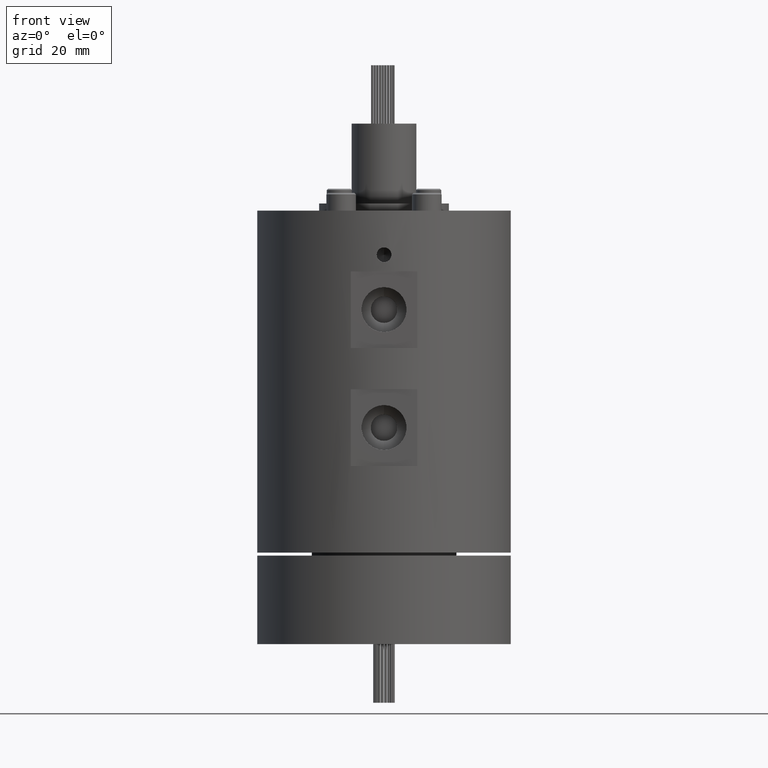
[diagram: clean part render]
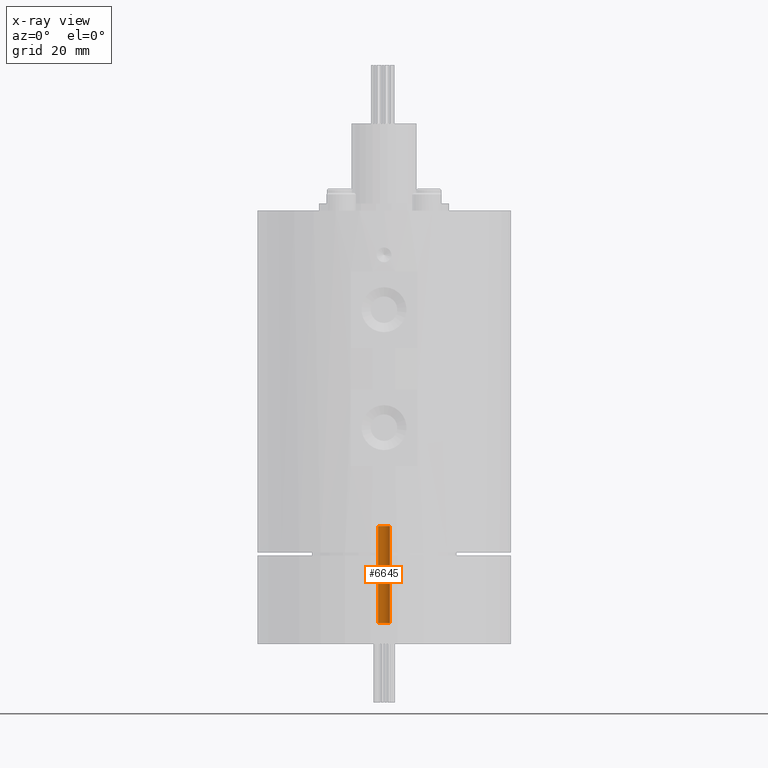
[diagram: x-ray — body ghosted, one internal face saturated and labeled with its STEP entity id]
A machine part, front view, then the same camera in x-ray: the body is ghosted and one INTERNAL B-rep face — a face not visible from any outside direction — is saturated and labeled: STEP entity #6645.
In plain terms, the highlighted cylindrical surface (edge-blend (fillet) strip) has radius 2 mm, axis along (-0, -0, -1).
Its self-contained STEP definition (entity closure, byte-faithful):
#52 = VERTEX_POINT ( 'NONE', #8959 ) ;
#114 = EDGE_CURVE ( 'NONE', #7316, #2812, #8034, .T. ) ;
#470 = CYLINDRICAL_SURFACE ( 'NONE', #6422, 2.000000000000000000 ) ;
#819 = ORIENTED_EDGE ( 'NONE', *, *, #4681, .F. ) ;
#873 = CIRCLE ( 'NONE', #8801, 2.000000000000000000 ) ;
#1481 = VERTEX_POINT ( 'NONE', #3238 ) ;
#1631 = CARTESIAN_POINT ( 'NONE',  ( 2.000000000000000000, 9.750000000000000000, 40.00000000000001400 ) ) ;
#1982 = DIRECTION ( 'NONE',  ( 0.0000000000000000000, 0.0000000000000000000, -1.000000000000000000 ) ) ;
#2320 = CARTESIAN_POINT ( 'NONE',  ( -2.000000000000000000, 9.750000000000000000, 40.00000000000001400 ) ) ;
#2540 = EDGE_CURVE ( 'NONE', #1481, #7316, #8185, .T. ) ;
#2587 = EDGE_CURVE ( 'NONE', #52, #2812, #4512, .T. ) ;
#2623 = DIRECTION ( 'NONE',  ( 0.0000000000000000000, 0.0000000000000000000, -1.000000000000000000 ) ) ;
#2812 = VERTEX_POINT ( 'NONE', #2954 ) ;
#2954 = CARTESIAN_POINT ( 'NONE',  ( 2.000000000000000000, 9.750000000000000000, 7.000000000000000000 ) ) ;
#3238 = CARTESIAN_POINT ( 'NONE',  ( -2.000000000000000000, 9.750000000000000000, 40.00000000000001400 ) ) ;
#3415 = AXIS2_PLACEMENT_3D ( 'NONE', #6115, #1982, #6816 ) ;
#3936 = DIRECTION ( 'NONE',  ( -0.0000000000000000000, -0.0000000000000000000, -1.000000000000000000 ) ) ;
#4209 = FACE_OUTER_BOUND ( 'NONE', #4342, .T. ) ;
#4342 = EDGE_LOOP ( 'NONE', ( #8320, #819, #5227, #8583 ) ) ;
#4512 = LINE ( 'NONE', #1631, #7748 ) ;
#4681 = EDGE_CURVE ( 'NONE', #1481, #52, #873, .T. ) ;
#5227 = ORIENTED_EDGE ( 'NONE', *, *, #2540, .T. ) ;
#5876 = DIRECTION ( 'NONE',  ( -0.0000000000000000000, -0.0000000000000000000, -1.000000000000000000 ) ) ;
#5967 = CARTESIAN_POINT ( 'NONE',  ( 0.0000000000000000000, 9.750000000000000000, 40.00000000000001400 ) ) ;
#6115 = CARTESIAN_POINT ( 'NONE',  ( 0.0000000000000000000, 9.750000000000000000, 7.000000000000000000 ) ) ;
#6422 = AXIS2_PLACEMENT_3D ( 'NONE', #5967, #3936, #8072 ) ;
#6645 = ADVANCED_FACE ( 'NONE', ( #4209 ), #470, .F. ) ;
#6754 = CARTESIAN_POINT ( 'NONE',  ( 0.0000000000000000000, 9.750000000000000000, 40.00000000000001400 ) ) ;
#6816 = DIRECTION ( 'NONE',  ( -1.000000000000000000, 0.0000000000000000000, 0.0000000000000000000 ) ) ;
#7316 = VERTEX_POINT ( 'NONE', #8286 ) ;
#7443 = DIRECTION ( 'NONE',  ( -1.000000000000000000, 0.0000000000000000000, 0.0000000000000000000 ) ) ;
#7748 = VECTOR ( 'NONE', #5876, 1000.000000000000000 ) ;
#7853 = DIRECTION ( 'NONE',  ( -0.0000000000000000000, -0.0000000000000000000, -1.000000000000000000 ) ) ;
#7961 = VECTOR ( 'NONE', #7853, 1000.000000000000000 ) ;
#8034 = CIRCLE ( 'NONE', #3415, 2.000000000000000000 ) ;
#8072 = DIRECTION ( 'NONE',  ( -1.000000000000000000, 0.0000000000000000000, 0.0000000000000000000 ) ) ;
#8185 = LINE ( 'NONE', #2320, #7961 ) ;
#8286 = CARTESIAN_POINT ( 'NONE',  ( -2.000000000000000000, 9.750000000000000000, 7.000000000000000000 ) ) ;
#8320 = ORIENTED_EDGE ( 'NONE', *, *, #2587, .F. ) ;
#8583 = ORIENTED_EDGE ( 'NONE', *, *, #114, .T. ) ;
#8801 = AXIS2_PLACEMENT_3D ( 'NONE', #6754, #2623, #7443 ) ;
#8959 = CARTESIAN_POINT ( 'NONE',  ( 2.000000000000000000, 9.750000000000000000, 40.00000000000001400 ) ) ;